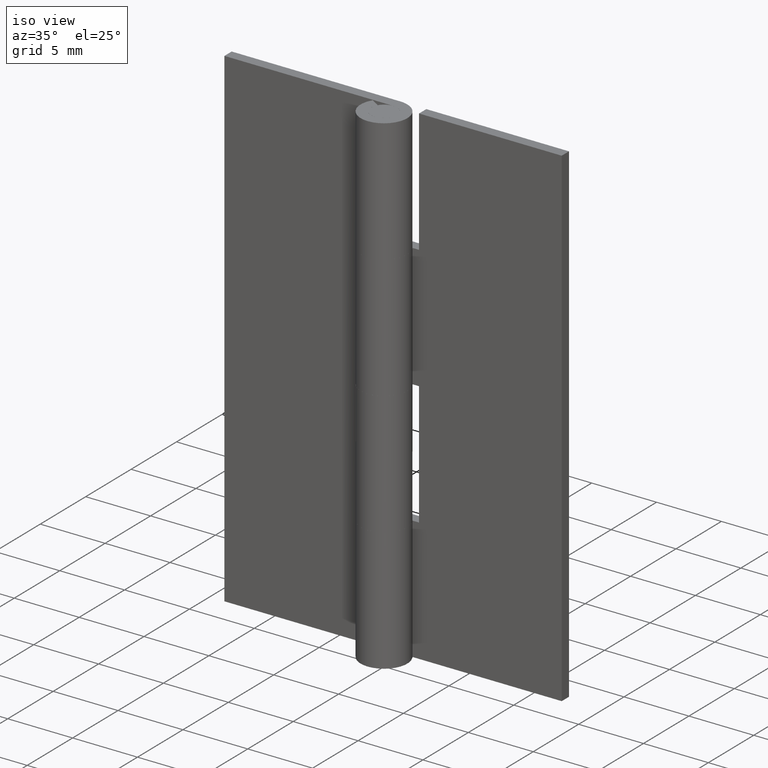
[diagram: clean part render]
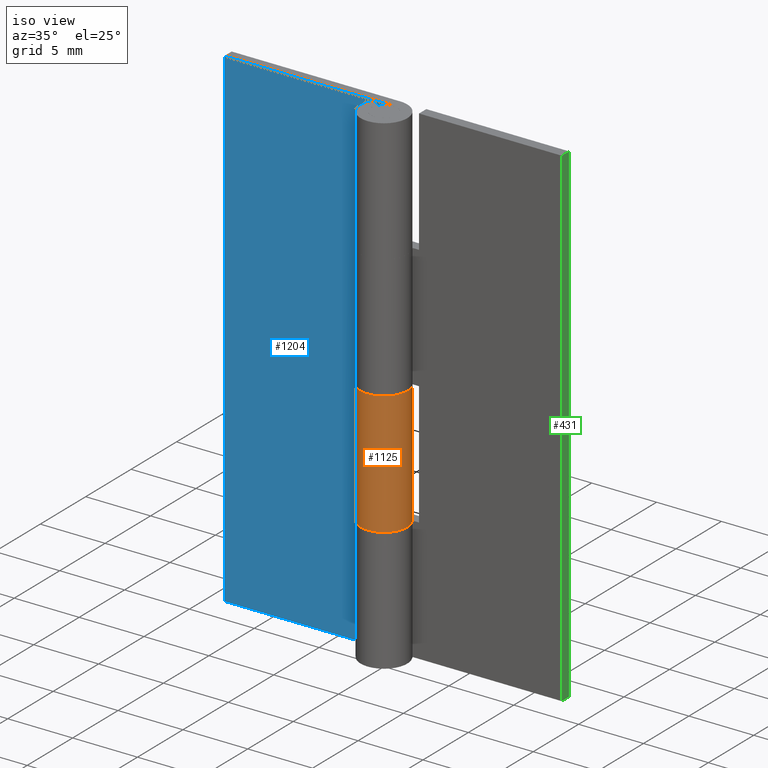
[diagram: same view with three faces highlighted in distinct colors, each labeled with its STEP entity id]
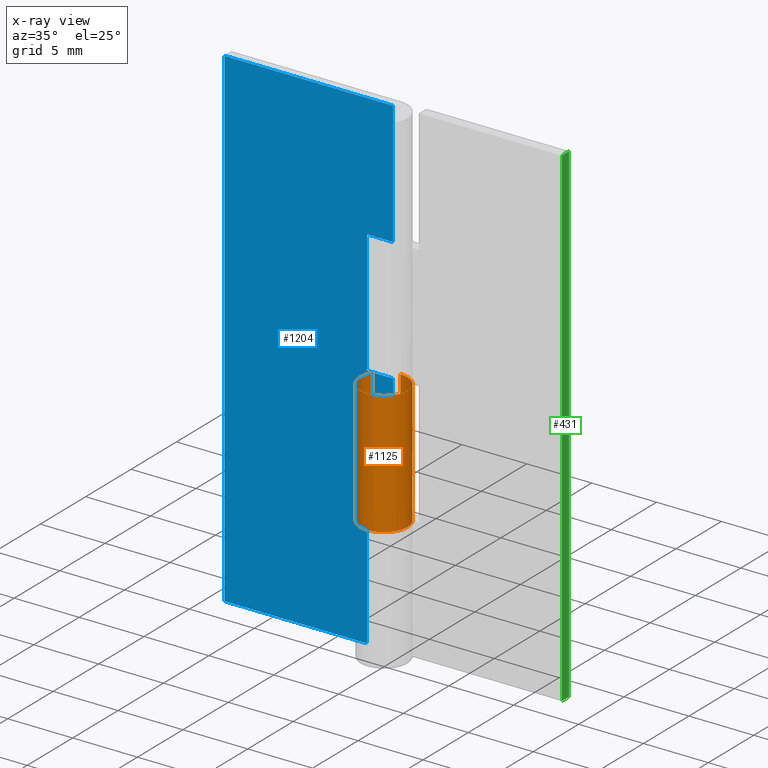
[diagram: x-ray of the same camera — body ghosted, the three highlighted faces saturated]
A machine part, iso view with three faces highlighted in distinct colors.
The next image is the same camera in x-ray (body ghosted, the three faces saturated) — at least one of them is partly hidden behind the body in this view.
Their STEP definitions:

[orange] entity #1125 — the highlighted face is a freeform B-spline surface patch.
#807=CARTESIAN_POINT('',(-1.528891033289545,0.950001583333335,19.0));
#808=VERTEX_POINT('',#807);
#814=CARTESIAN_POINT('',(-1.543616E-015,1.800003000000025,19.0));
#815=VERTEX_POINT('',#814);
#816=CARTESIAN_POINT('',(0.0,1.800003000000000,19.0));
#817=CARTESIAN_POINT('',(1.392803374264186,1.800003000000001,19.0));
#818=CARTESIAN_POINT('',(1.742384017568445,0.451783947624356,19.0));
#819=CARTESIAN_POINT('',(2.091964660872705,-0.896435104751289,19.0));
#820=CARTESIAN_POINT('',(0.874644241964771,-1.573215894277347,19.0));
#821=CARTESIAN_POINT('',(-0.342676176943164,-2.249996683803406,19.0));
#822=CARTESIAN_POINT('',(-1.303328939991624,-1.241508950507128,19.0));
#823=CARTESIAN_POINT('',(-2.263981703040083,-0.233021217210851,19.0));
#824=CARTESIAN_POINT('',(-1.528891033289541,0.950001583333333,19.0));
#832=(BOUNDED_CURVE()B_SPLINE_CURVE(2,(#816,#817,#818,#819,#820,#821,#822,#823,#824),.UNSPECIFIED.,.F.,.U.)B_SPLINE_CURVE_WITH_KNOTS((3,2,2,2,3),(0.0,0.250000000000000,0.500000000000000,0.750000000000000,1.0),.UNSPECIFIED.)CURVE()GEOMETRIC_REPRESENTATION_ITEM()RATIONAL_B_SPLINE_CURVE((1.0,0.790882628363956,1.0,0.790882628363956,1.0,0.790882628363956,1.0,0.790882628363956,1.0))REPRESENTATION_ITEM(''));
#833=EDGE_CURVE('',#815,#808,#832,.T.);
#919=CARTESIAN_POINT('',(-1.543616E-015,1.800003000000025,9.500000000000000));
#920=VERTEX_POINT('',#919);
#926=CARTESIAN_POINT('',(-1.528891033289545,0.950001583333335,9.500000000000000));
#927=VERTEX_POINT('',#926);
#928=CARTESIAN_POINT('',(-1.528891033289541,0.950001583333333,9.500000000000000));
#929=CARTESIAN_POINT('',(-2.263981703040084,-0.233021217210850,9.500000000000002));
#930=CARTESIAN_POINT('',(-1.303328939991624,-1.241508950507128,9.500000000000000));
#931=CARTESIAN_POINT('',(-0.342676176943164,-2.249996683803405,9.500000000000002));
#932=CARTESIAN_POINT('',(0.874644241964770,-1.573215894277347,9.500000000000000));
#933=CARTESIAN_POINT('',(2.091964660872704,-0.896435104751290,9.500000000000002));
#934=CARTESIAN_POINT('',(1.742384017568445,0.451783947624355,9.500000000000000));
#935=CARTESIAN_POINT('',(1.392803374264185,1.800003000000000,9.500000000000002));
#936=CARTESIAN_POINT('',(-1.543616E-015,1.800003000000025,9.500000000000000));
#944=(BOUNDED_CURVE()B_SPLINE_CURVE(2,(#928,#929,#930,#931,#932,#933,#934,#935,#936),.UNSPECIFIED.,.F.,.U.)B_SPLINE_CURVE_WITH_KNOTS((3,2,2,2,3),(0.0,0.250000000000000,0.500000000000000,0.750000000000000,1.0),.UNSPECIFIED.)CURVE()GEOMETRIC_REPRESENTATION_ITEM()RATIONAL_B_SPLINE_CURVE((1.0,0.790882628363956,1.0,0.790882628363956,1.0,0.790882628363956,1.0,0.790882628363956,1.0))REPRESENTATION_ITEM(''));
#945=EDGE_CURVE('',#927,#920,#944,.T.);
#1089=CARTESIAN_POINT('',(-1.500996981378369,0.993488229372659,19.237500000000001));
#1090=CARTESIAN_POINT('',(-1.500996981378369,0.993488229372659,9.256562499999998));
#1091=CARTESIAN_POINT('',(-2.742552575008227,-0.882297656312772,19.237500000000008));
#1092=CARTESIAN_POINT('',(-2.742552575008227,-0.882297656312772,9.256562499999998));
#1093=CARTESIAN_POINT('',(-0.640172438219062,-1.682316869484955,19.237500000000001));
#1094=CARTESIAN_POINT('',(-0.640172438219062,-1.682316869484955,9.256562499999998));
#1095=CARTESIAN_POINT('',(1.462207698570103,-2.482336082657139,19.237500000000008));
#1096=CARTESIAN_POINT('',(1.462207698570103,-2.482336082657139,9.256562499999998));
#1097=CARTESIAN_POINT('',(1.781749244369752,-0.255695972195137,19.237500000000001));
#1098=CARTESIAN_POINT('',(1.781749244369752,-0.255695972195137,9.256562499999998));
#1099=CARTESIAN_POINT('',(2.101290790169402,1.970944138266864,19.237500000000008));
#1100=CARTESIAN_POINT('',(2.101290790169402,1.970944138266864,9.256562499999998));
#1101=CARTESIAN_POINT('',(-0.141226607687409,1.794454191471631,19.237500000000001));
#1102=CARTESIAN_POINT('',(-0.141226607687409,1.794454191471631,9.256562499999998));
#1110=(BOUNDED_SURFACE()B_SPLINE_SURFACE(1,2,((#1089,#1091,#1093,#1095,#1097,#1099,#1101),(#1090,#1092,#1094,#1096,#1098,#1100,#1102)),.UNSPECIFIED.,.F.,.F.,.U.)B_SPLINE_SURFACE_WITH_KNOTS((2,2),(3,2,2,3),(0.0,9.980937500000007),(0.0,3.459974212815107,6.919948425630214,10.379922638445320),.UNSPECIFIED.)GEOMETRIC_REPRESENTATION_ITEM()RATIONAL_B_SPLINE_SURFACE(((1.0,0.624788514543960,1.0,0.624788514543960,1.0,0.624788514543960,1.0),(1.0,0.624788514543960,1.0,0.624788514543960,1.0,0.624788514543960,1.0)))REPRESENTATION_ITEM('')SURFACE());
#1111=CARTESIAN_POINT('',(-1.543616E-015,1.800003000000025,19.0));
#1112=CARTESIAN_POINT('',(-1.543616E-015,1.800003000000025,9.500000000000000));
#1113=QUASI_UNIFORM_CURVE('',1,(#1111,#1112),.UNSPECIFIED.,.F.,.U.);
#1114=EDGE_CURVE('',#815,#920,#1113,.T.);
#1115=ORIENTED_EDGE('',*,*,#1114,.F.);
#1116=ORIENTED_EDGE('',*,*,#833,.T.);
#1117=CARTESIAN_POINT('',(-1.528891033289545,0.950001583333335,19.0));
#1118=CARTESIAN_POINT('',(-1.528891033289545,0.950001583333335,9.500000000000000));
#1119=QUASI_UNIFORM_CURVE('',1,(#1117,#1118),.UNSPECIFIED.,.F.,.U.);
#1120=EDGE_CURVE('',#808,#927,#1119,.T.);
#1121=ORIENTED_EDGE('',*,*,#1120,.T.);
#1122=ORIENTED_EDGE('',*,*,#945,.T.);
#1123=EDGE_LOOP('',(#1115,#1116,#1121,#1122));
#1124=FACE_OUTER_BOUND('',#1123,.T.);
#1125=ADVANCED_FACE('',(#1124),#1110,.T.);

[blue] entity #1204 — the highlighted face is a freeform B-spline surface patch.
#706=CARTESIAN_POINT('',(-2.0,1.0,28.500000000000000));
#707=VERTEX_POINT('',#706);
#750=CARTESIAN_POINT('',(-1.224606E-016,1.0,28.500000000000000));
#751=VERTEX_POINT('',#750);
#771=CARTESIAN_POINT('',(-2.0,1.0,28.500000000000000));
#772=CARTESIAN_POINT('',(-1.224606E-016,1.0,28.500000000000000));
#773=QUASI_UNIFORM_CURVE('',1,(#771,#772),.UNSPECIFIED.,.F.,.U.);
#774=EDGE_CURVE('',#707,#751,#773,.T.);
#784=CARTESIAN_POINT('',(-1.224606E-016,1.0,19.0));
#785=VERTEX_POINT('',#784);
#842=CARTESIAN_POINT('',(-2.0,1.0,19.0));
#843=VERTEX_POINT('',#842);
#849=CARTESIAN_POINT('',(-1.224606E-016,1.0,19.0));
#850=CARTESIAN_POINT('',(-2.0,1.0,19.0));
#851=QUASI_UNIFORM_CURVE('',1,(#849,#850),.UNSPECIFIED.,.F.,.U.);
#852=EDGE_CURVE('',#785,#843,#851,.T.);
#869=CARTESIAN_POINT('',(-2.0,1.0,19.0));
#870=CARTESIAN_POINT('',(-2.0,1.0,28.500000000000000));
#871=QUASI_UNIFORM_CURVE('',1,(#869,#870),.UNSPECIFIED.,.F.,.U.);
#872=EDGE_CURVE('',#843,#707,#871,.T.);
#882=CARTESIAN_POINT('',(-2.0,1.0,0.0));
#883=VERTEX_POINT('',#882);
#898=CARTESIAN_POINT('',(-2.0,1.0,9.499999999999901));
#899=VERTEX_POINT('',#898);
#905=CARTESIAN_POINT('',(-2.0,1.0,0.0));
#906=CARTESIAN_POINT('',(-2.0,1.0,9.499999999999901));
#907=QUASI_UNIFORM_CURVE('',1,(#905,#906),.UNSPECIFIED.,.F.,.U.);
#908=EDGE_CURVE('',#883,#899,#907,.T.);
#954=CARTESIAN_POINT('',(-1.224606E-016,1.0,9.500000000000000));
#955=VERTEX_POINT('',#954);
#975=CARTESIAN_POINT('',(-2.0,1.0,9.499999999999901));
#976=CARTESIAN_POINT('',(-1.224606E-016,1.0,9.500000000000000));
#977=QUASI_UNIFORM_CURVE('',1,(#975,#976),.UNSPECIFIED.,.F.,.U.);
#978=EDGE_CURVE('',#899,#955,#977,.T.);
#996=CARTESIAN_POINT('',(-13.0,1.0,0.0));
#997=VERTEX_POINT('',#996);
#998=CARTESIAN_POINT('',(-13.0,1.0,0.0));
#999=CARTESIAN_POINT('',(-2.0,1.0,0.0));
#1000=QUASI_UNIFORM_CURVE('',1,(#998,#999),.UNSPECIFIED.,.F.,.U.);
#1001=EDGE_CURVE('',#997,#883,#1000,.T.);
#1025=CARTESIAN_POINT('',(-13.0,1.0,37.999984999999903));
#1026=VERTEX_POINT('',#1025);
#1032=CARTESIAN_POINT('',(-1.224606E-016,1.0,37.999984999999903));
#1033=VERTEX_POINT('',#1032);
#1034=CARTESIAN_POINT('',(-13.0,1.0,37.999984999999903));
#1035=CARTESIAN_POINT('',(-1.224606E-016,1.0,37.999984999999903));
#1036=QUASI_UNIFORM_CURVE('',1,(#1034,#1035),.UNSPECIFIED.,.F.,.U.);
#1037=EDGE_CURVE('',#1026,#1033,#1036,.T.);
#1171=CARTESIAN_POINT('',(-1.224606E-016,1.0,37.999984999999903));
#1172=CARTESIAN_POINT('',(-1.224606E-016,1.0,28.500000000000000));
#1173=QUASI_UNIFORM_CURVE('',1,(#1171,#1172),.UNSPECIFIED.,.F.,.U.);
#1174=EDGE_CURVE('',#1033,#751,#1173,.T.);
#1179=CARTESIAN_POINT('',(-13.649349974803480,1.0,-1.898099177098652));
#1180=CARTESIAN_POINT('',(-13.649349974803480,1.0,39.898085196337568));
#1181=CARTESIAN_POINT('',(0.649350323490649,1.0,-1.898099177098652));
#1182=CARTESIAN_POINT('',(0.649350323490649,1.0,39.898085196337568));
#1183=B_SPLINE_SURFACE_WITH_KNOTS('',1,1,((#1179,#1181),(#1180,#1182)),.UNSPECIFIED.,.F.,.F.,.U.,(2,2),(2,2),(0.0,41.796184373436219),(0.0,14.298700298294129),.UNSPECIFIED.);
#1184=CARTESIAN_POINT('',(-1.224606E-016,1.0,19.0));
#1185=CARTESIAN_POINT('',(-1.224606E-016,1.0,9.500000000000000));
#1186=QUASI_UNIFORM_CURVE('',1,(#1184,#1185),.UNSPECIFIED.,.F.,.U.);
#1187=EDGE_CURVE('',#785,#955,#1186,.T.);
#1188=ORIENTED_EDGE('',*,*,#1187,.F.);
#1189=ORIENTED_EDGE('',*,*,#852,.T.);
#1190=ORIENTED_EDGE('',*,*,#872,.T.);
#1191=ORIENTED_EDGE('',*,*,#774,.T.);
#1192=ORIENTED_EDGE('',*,*,#1174,.F.);
#1193=ORIENTED_EDGE('',*,*,#1037,.F.);
#1194=CARTESIAN_POINT('',(-13.0,1.0,37.999984999999903));
#1195=CARTESIAN_POINT('',(-13.0,1.0,0.0));
#1196=QUASI_UNIFORM_CURVE('',1,(#1194,#1195),.UNSPECIFIED.,.F.,.U.);
#1197=EDGE_CURVE('',#1026,#997,#1196,.T.);
#1198=ORIENTED_EDGE('',*,*,#1197,.T.);
#1199=ORIENTED_EDGE('',*,*,#1001,.T.);
#1200=ORIENTED_EDGE('',*,*,#908,.T.);
#1201=ORIENTED_EDGE('',*,*,#978,.T.);
#1202=EDGE_LOOP('',(#1188,#1189,#1190,#1191,#1192,#1193,#1198,#1199,#1200,#1201));
#1203=FACE_OUTER_BOUND('',#1202,.T.);
#1204=ADVANCED_FACE('',(#1203),#1183,.F.);

[green] entity #431 — the highlighted face is a freeform B-spline surface patch.
#331=CARTESIAN_POINT('',(13.0,1.799999000000000,0.0));
#332=VERTEX_POINT('',#331);
#340=CARTESIAN_POINT('',(13.0,1.0,0.0));
#341=VERTEX_POINT('',#340);
#342=CARTESIAN_POINT('',(13.0,1.0,0.0));
#343=CARTESIAN_POINT('',(13.0,1.799999000000000,0.0));
#344=QUASI_UNIFORM_CURVE('',1,(#342,#343),.UNSPECIFIED.,.F.,.U.);
#345=EDGE_CURVE('',#341,#332,#344,.T.);
#404=CARTESIAN_POINT('',(13.0,0.960040051500553,-1.898099177098652));
#405=CARTESIAN_POINT('',(13.0,0.960040051500553,39.898085196337568));
#406=CARTESIAN_POINT('',(13.0,1.839958969957092,-1.898099177098652));
#407=CARTESIAN_POINT('',(13.0,1.839958969957092,39.898085196337568));
#408=B_SPLINE_SURFACE_WITH_KNOTS('',1,1,((#404,#406),(#405,#407)),.UNSPECIFIED.,.F.,.F.,.U.,(2,2),(2,2),(0.0,41.796184373436219),(0.041708334948495,0.958291687403247),.UNSPECIFIED.);
#409=ORIENTED_EDGE('',*,*,#345,.T.);
#410=CARTESIAN_POINT('',(13.0,1.799999000000000,37.999984999999903));
#411=VERTEX_POINT('',#410);
#412=CARTESIAN_POINT('',(13.0,1.799999000000000,37.999984999999903));
#413=CARTESIAN_POINT('',(13.0,1.799999000000000,0.0));
#414=QUASI_UNIFORM_CURVE('',1,(#412,#413),.UNSPECIFIED.,.F.,.U.);
#415=EDGE_CURVE('',#411,#332,#414,.T.);
#416=ORIENTED_EDGE('',*,*,#415,.F.);
#417=CARTESIAN_POINT('',(13.0,1.0,37.999984999999903));
#418=VERTEX_POINT('',#417);
#419=CARTESIAN_POINT('',(13.0,1.0,37.999984999999903));
#420=CARTESIAN_POINT('',(13.0,1.799999000000000,37.999984999999903));
#421=QUASI_UNIFORM_CURVE('',1,(#419,#420),.UNSPECIFIED.,.F.,.U.);
#422=EDGE_CURVE('',#418,#411,#421,.T.);
#423=ORIENTED_EDGE('',*,*,#422,.F.);
#424=CARTESIAN_POINT('',(13.0,1.0,37.999984999999903));
#425=CARTESIAN_POINT('',(13.0,1.0,0.0));
#426=QUASI_UNIFORM_CURVE('',1,(#424,#425),.UNSPECIFIED.,.F.,.U.);
#427=EDGE_CURVE('',#418,#341,#426,.T.);
#428=ORIENTED_EDGE('',*,*,#427,.T.);
#429=EDGE_LOOP('',(#409,#416,#423,#428));
#430=FACE_OUTER_BOUND('',#429,.T.);
#431=ADVANCED_FACE('',(#430),#408,.F.);